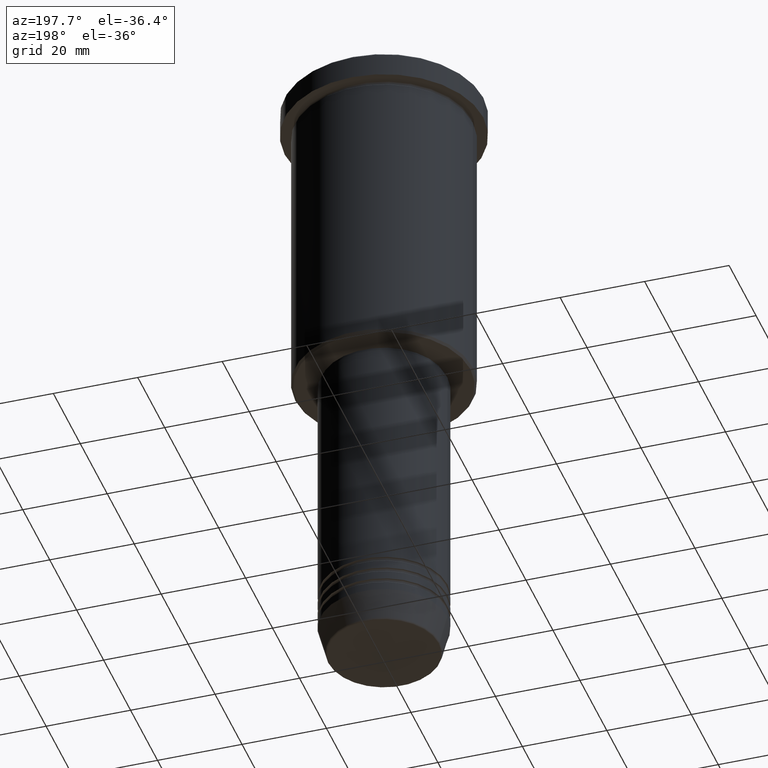
[diagram: clean part render]
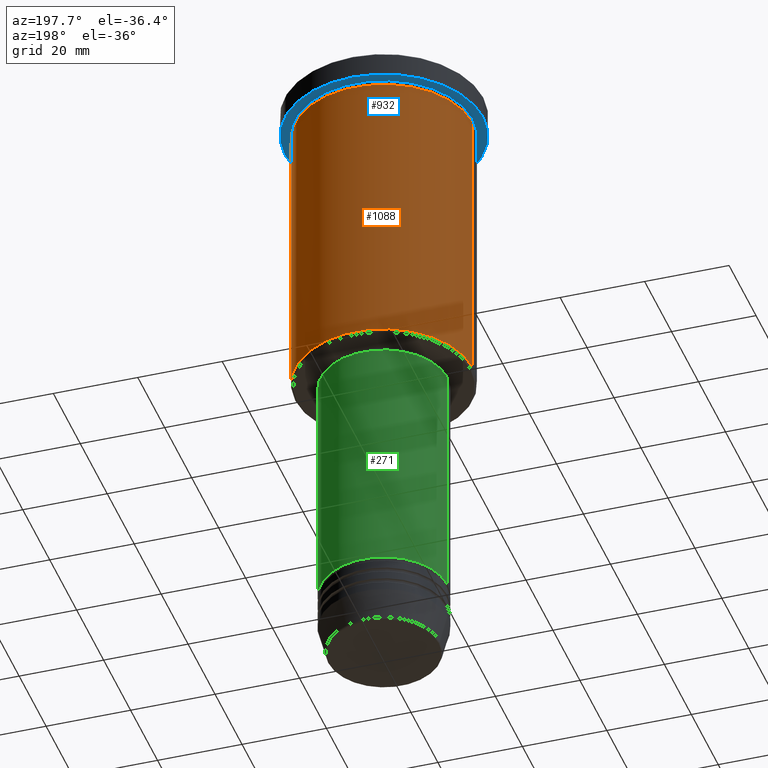
[diagram: same view with three faces highlighted in distinct colors, each labeled with its STEP entity id]
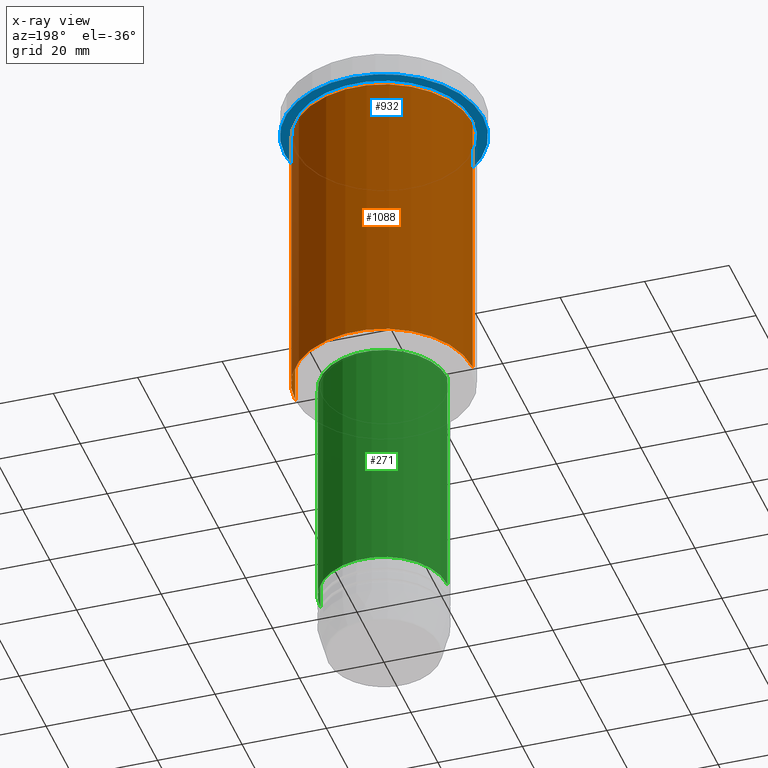
[diagram: x-ray of the same camera — body ghosted, the three highlighted faces saturated]
A machine part, auxiliary view with three faces highlighted in distinct colors.
The next image is the same camera in x-ray (body ghosted, the three faces saturated) — at least one of them is partly hidden behind the body in this view.
Their STEP definitions:

[orange] entity #1088 — the highlighted cylindrical surface (partial cylindrical patch) has radius 21 mm, axis along (-0, -0, 1).
#30 = VERTEX_POINT ( 'NONE', #281 ) ;
#32 = EDGE_LOOP ( 'NONE', ( #74, #420, #929, #1161 ) ) ;
#37 = DIRECTION ( 'NONE',  ( 1.000000000000000000, 0.000000000000000000, 0.000000000000000000 ) ) ;
#47 = AXIS2_PLACEMENT_3D ( 'NONE', #1021, #454, #541 ) ;
#51 = DIRECTION ( 'NONE',  ( -0.000000000000000000, -0.000000000000000000, 1.000000000000000000 ) ) ;
#74 = ORIENTED_EDGE ( 'NONE', *, *, #897, .T. ) ;
#100 = VERTEX_POINT ( 'NONE', #973 ) ;
#149 = AXIS2_PLACEMENT_3D ( 'NONE', #496, #51, #37 ) ;
#224 = CARTESIAN_POINT ( 'NONE',  ( 21.00000000000000000, 0.000000000000000000, -75.50000000000000000 ) ) ;
#242 = FACE_OUTER_BOUND ( 'NONE', #32, .T. ) ;
#262 = CARTESIAN_POINT ( 'NONE',  ( 21.00000000000000000, 0.000000000000000000, 0.000000000000000000 ) ) ;
#268 = LINE ( 'NONE', #262, #907 ) ;
#281 = CARTESIAN_POINT ( 'NONE',  ( -21.00000000000000000, 2.571758278209441661E-15, -6.999999999999994671 ) ) ;
#314 = VECTOR ( 'NONE', #1120, 1000.000000000000000 ) ;
#363 = CARTESIAN_POINT ( 'NONE',  ( 21.00000000000000000, 0.000000000000000000, -6.999999999999994671 ) ) ;
#406 = LINE ( 'NONE', #745, #314 ) ;
#420 = ORIENTED_EDGE ( 'NONE', *, *, #1153, .T. ) ;
#454 = DIRECTION ( 'NONE',  ( -0.000000000000000000, -0.000000000000000000, 1.000000000000000000 ) ) ;
#496 = CARTESIAN_POINT ( 'NONE',  ( 0.000000000000000000, 0.000000000000000000, -6.999999999999994671 ) ) ;
#541 = DIRECTION ( 'NONE',  ( -1.000000000000000000, 0.000000000000000000, 0.000000000000000000 ) ) ;
#580 = CYLINDRICAL_SURFACE ( 'NONE', #682, 21.00000000000000000 ) ;
#615 = DIRECTION ( 'NONE',  ( -0.000000000000000000, -0.000000000000000000, 1.000000000000000000 ) ) ;
#664 = CIRCLE ( 'NONE', #149, 21.00000000000000000 ) ;
#682 = AXIS2_PLACEMENT_3D ( 'NONE', #1044, #954, #835 ) ;
#745 = CARTESIAN_POINT ( 'NONE',  ( -21.00000000000000000, 2.571758278209441661E-15, 0.000000000000000000 ) ) ;
#805 = EDGE_CURVE ( 'NONE', #1119, #901, #268, .T. ) ;
#835 = DIRECTION ( 'NONE',  ( 1.000000000000000000, 0.000000000000000000, 0.000000000000000000 ) ) ;
#897 = EDGE_CURVE ( 'NONE', #1119, #100, #1149, .T. ) ;
#901 = VERTEX_POINT ( 'NONE', #363 ) ;
#907 = VECTOR ( 'NONE', #615, 1000.000000000000000 ) ;
#929 = ORIENTED_EDGE ( 'NONE', *, *, #1080, .F. ) ;
#954 = DIRECTION ( 'NONE',  ( -0.000000000000000000, -0.000000000000000000, 1.000000000000000000 ) ) ;
#973 = CARTESIAN_POINT ( 'NONE',  ( -21.00000000000000000, 2.571758278209441661E-15, -75.50000000000000000 ) ) ;
#1021 = CARTESIAN_POINT ( 'NONE',  ( 0.000000000000000000, 0.000000000000000000, -75.50000000000000000 ) ) ;
#1044 = CARTESIAN_POINT ( 'NONE',  ( 0.000000000000000000, 0.000000000000000000, 0.000000000000000000 ) ) ;
#1080 = EDGE_CURVE ( 'NONE', #901, #30, #664, .T. ) ;
#1088 = ADVANCED_FACE ( 'NONE', ( #242 ), #580, .T. ) ;
#1119 = VERTEX_POINT ( 'NONE', #224 ) ;
#1120 = DIRECTION ( 'NONE',  ( -0.000000000000000000, -0.000000000000000000, 1.000000000000000000 ) ) ;
#1149 = CIRCLE ( 'NONE', #47, 21.00000000000000000 ) ;
#1153 = EDGE_CURVE ( 'NONE', #100, #30, #406, .T. ) ;
#1161 = ORIENTED_EDGE ( 'NONE', *, *, #805, .F. ) ;

[blue] entity #932 — the highlighted planar face has unit normal (0, 0, -1).
#23 = DIRECTION ( 'NONE',  ( -1.000000000000000000, 0.000000000000000000, -0.000000000000000000 ) ) ;
#36 = EDGE_CURVE ( 'NONE', #528, #128, #308, .T. ) ;
#41 = AXIS2_PLACEMENT_3D ( 'NONE', #989, #895, #94 ) ;
#49 = CIRCLE ( 'NONE', #1050, 21.00000000000000000 ) ;
#53 = EDGE_CURVE ( 'NONE', #428, #726, #945, .T. ) ;
#93 = CARTESIAN_POINT ( 'NONE',  ( 23.50000000000000000, 0.000000000000000000, -5.999999999999994671 ) ) ;
#94 = DIRECTION ( 'NONE',  ( 1.000000000000000000, 0.000000000000000000, 0.000000000000000000 ) ) ;
#107 = FACE_BOUND ( 'NONE', #326, .T. ) ;
#117 = DIRECTION ( 'NONE',  ( -1.000000000000000000, 0.000000000000000000, 0.000000000000000000 ) ) ;
#128 = VERTEX_POINT ( 'NONE', #450 ) ;
#164 = AXIS2_PLACEMENT_3D ( 'NONE', #464, #807, #23 ) ;
#178 = AXIS2_PLACEMENT_3D ( 'NONE', #1109, #1015, #117 ) ;
#265 = EDGE_CURVE ( 'NONE', #726, #428, #949, .T. ) ;
#308 = CIRCLE ( 'NONE', #178, 21.00000000000000000 ) ;
#326 = EDGE_LOOP ( 'NONE', ( #879, #689 ) ) ;
#329 = AXIS2_PLACEMENT_3D ( 'NONE', #577, #747, #841 ) ;
#373 = ORIENTED_EDGE ( 'NONE', *, *, #53, .F. ) ;
#428 = VERTEX_POINT ( 'NONE', #964 ) ;
#450 = CARTESIAN_POINT ( 'NONE',  ( -21.00000000000000000, 0.000000000000000000, -5.999999999999994671 ) ) ;
#464 = CARTESIAN_POINT ( 'NONE',  ( 0.000000000000000000, 23.50000000000000000, -5.999999999999994671 ) ) ;
#482 = CARTESIAN_POINT ( 'NONE',  ( 21.00000000000000000, 2.571758278209441661E-15, -5.999999999999994671 ) ) ;
#528 = VERTEX_POINT ( 'NONE', #482 ) ;
#560 = PLANE ( 'NONE',  #164 ) ;
#577 = CARTESIAN_POINT ( 'NONE',  ( 0.000000000000000000, 0.000000000000000000, -5.999999999999994671 ) ) ;
#657 = DIRECTION ( 'NONE',  ( -1.000000000000000000, 0.000000000000000000, 0.000000000000000000 ) ) ;
#689 = ORIENTED_EDGE ( 'NONE', *, *, #36, .T. ) ;
#726 = VERTEX_POINT ( 'NONE', #93 ) ;
#732 = FACE_OUTER_BOUND ( 'NONE', #1155, .T. ) ;
#747 = DIRECTION ( 'NONE',  ( -0.000000000000000000, -0.000000000000000000, 1.000000000000000000 ) ) ;
#807 = DIRECTION ( 'NONE',  ( 0.000000000000000000, 0.000000000000000000, -1.000000000000000000 ) ) ;
#830 = DIRECTION ( 'NONE',  ( -0.000000000000000000, -0.000000000000000000, 1.000000000000000000 ) ) ;
#841 = DIRECTION ( 'NONE',  ( 1.000000000000000000, 0.000000000000000000, 0.000000000000000000 ) ) ;
#844 = CARTESIAN_POINT ( 'NONE',  ( 0.000000000000000000, 0.000000000000000000, -5.999999999999994671 ) ) ;
#879 = ORIENTED_EDGE ( 'NONE', *, *, #1136, .T. ) ;
#895 = DIRECTION ( 'NONE',  ( -0.000000000000000000, -0.000000000000000000, 1.000000000000000000 ) ) ;
#932 = ADVANCED_FACE ( 'NONE', ( #107, #732 ), #560, .T. ) ;
#945 = CIRCLE ( 'NONE', #41, 23.50000000000000000 ) ;
#949 = CIRCLE ( 'NONE', #329, 23.50000000000000000 ) ;
#964 = CARTESIAN_POINT ( 'NONE',  ( -23.50000000000000000, 2.877919977996280320E-15, -5.999999999999994671 ) ) ;
#989 = CARTESIAN_POINT ( 'NONE',  ( 0.000000000000000000, 0.000000000000000000, -5.999999999999994671 ) ) ;
#1015 = DIRECTION ( 'NONE',  ( -0.000000000000000000, -0.000000000000000000, 1.000000000000000000 ) ) ;
#1050 = AXIS2_PLACEMENT_3D ( 'NONE', #844, #830, #657 ) ;
#1109 = CARTESIAN_POINT ( 'NONE',  ( 0.000000000000000000, 0.000000000000000000, -5.999999999999994671 ) ) ;
#1136 = EDGE_CURVE ( 'NONE', #128, #528, #49, .T. ) ;
#1155 = EDGE_LOOP ( 'NONE', ( #1165, #373 ) ) ;
#1165 = ORIENTED_EDGE ( 'NONE', *, *, #265, .F. ) ;

[green] entity #271 — the highlighted cylindrical surface (partial cylindrical patch) has radius 15 mm, axis along (-0, -0, 1).
#9 = CARTESIAN_POINT ( 'NONE',  ( -15.00000000000000000, 1.836970198721029589E-15, -76.99999999999998579 ) ) ;
#50 = FACE_OUTER_BOUND ( 'NONE', #1004, .T. ) ;
#83 = AXIS2_PLACEMENT_3D ( 'NONE', #574, #1053, #156 ) ;
#116 = CARTESIAN_POINT ( 'NONE',  ( -15.00000000000000000, 1.836970198721029589E-15, -134.9999999999999432 ) ) ;
#127 = DIRECTION ( 'NONE',  ( 1.000000000000000000, 0.000000000000000000, 0.000000000000000000 ) ) ;
#156 = DIRECTION ( 'NONE',  ( 1.000000000000000000, 0.000000000000000000, 0.000000000000000000 ) ) ;
#160 = ORIENTED_EDGE ( 'NONE', *, *, #539, .F. ) ;
#179 = CARTESIAN_POINT ( 'NONE',  ( 15.00000000000000000, 0.000000000000000000, -134.9999999999999432 ) ) ;
#192 = DIRECTION ( 'NONE',  ( 1.000000000000000000, 0.000000000000000000, 0.000000000000000000 ) ) ;
#246 = ORIENTED_EDGE ( 'NONE', *, *, #520, .T. ) ;
#256 = CIRCLE ( 'NONE', #83, 15.00000000000000000 ) ;
#271 = ADVANCED_FACE ( 'NONE', ( #50 ), #438, .T. ) ;
#274 = VERTEX_POINT ( 'NONE', #9 ) ;
#298 = DIRECTION ( 'NONE',  ( -0.000000000000000000, -0.000000000000000000, 1.000000000000000000 ) ) ;
#299 = DIRECTION ( 'NONE',  ( -0.000000000000000000, -0.000000000000000000, 1.000000000000000000 ) ) ;
#335 = CARTESIAN_POINT ( 'NONE',  ( 15.00000000000000000, 0.000000000000000000, -76.99999999999998579 ) ) ;
#438 = CYLINDRICAL_SURFACE ( 'NONE', #459, 15.00000000000000000 ) ;
#459 = AXIS2_PLACEMENT_3D ( 'NONE', #508, #543, #192 ) ;
#508 = CARTESIAN_POINT ( 'NONE',  ( 0.000000000000000000, 0.000000000000000000, 0.000000000000000000 ) ) ;
#520 = EDGE_CURVE ( 'NONE', #861, #981, #1048, .T. ) ;
#539 = EDGE_CURVE ( 'NONE', #861, #593, #628, .T. ) ;
#543 = DIRECTION ( 'NONE',  ( -0.000000000000000000, -0.000000000000000000, 1.000000000000000000 ) ) ;
#574 = CARTESIAN_POINT ( 'NONE',  ( 0.000000000000000000, 0.000000000000000000, -76.99999999999998579 ) ) ;
#593 = VERTEX_POINT ( 'NONE', #335 ) ;
#621 = EDGE_CURVE ( 'NONE', #593, #274, #256, .T. ) ;
#628 = LINE ( 'NONE', #1009, #772 ) ;
#715 = AXIS2_PLACEMENT_3D ( 'NONE', #1116, #299, #127 ) ;
#772 = VECTOR ( 'NONE', #996, 1000.000000000000000 ) ;
#790 = VECTOR ( 'NONE', #298, 1000.000000000000000 ) ;
#861 = VERTEX_POINT ( 'NONE', #179 ) ;
#869 = ORIENTED_EDGE ( 'NONE', *, *, #991, .T. ) ;
#906 = CARTESIAN_POINT ( 'NONE',  ( -15.00000000000000000, 1.836970198721029589E-15, 0.000000000000000000 ) ) ;
#981 = VERTEX_POINT ( 'NONE', #116 ) ;
#991 = EDGE_CURVE ( 'NONE', #981, #274, #1089, .T. ) ;
#996 = DIRECTION ( 'NONE',  ( -0.000000000000000000, -0.000000000000000000, 1.000000000000000000 ) ) ;
#1004 = EDGE_LOOP ( 'NONE', ( #246, #869, #1173, #160 ) ) ;
#1009 = CARTESIAN_POINT ( 'NONE',  ( 15.00000000000000000, 0.000000000000000000, 0.000000000000000000 ) ) ;
#1048 = CIRCLE ( 'NONE', #715, 15.00000000000000000 ) ;
#1053 = DIRECTION ( 'NONE',  ( -0.000000000000000000, -0.000000000000000000, 1.000000000000000000 ) ) ;
#1089 = LINE ( 'NONE', #906, #790 ) ;
#1116 = CARTESIAN_POINT ( 'NONE',  ( 0.000000000000000000, 0.000000000000000000, -134.9999999999999432 ) ) ;
#1173 = ORIENTED_EDGE ( 'NONE', *, *, #621, .F. ) ;